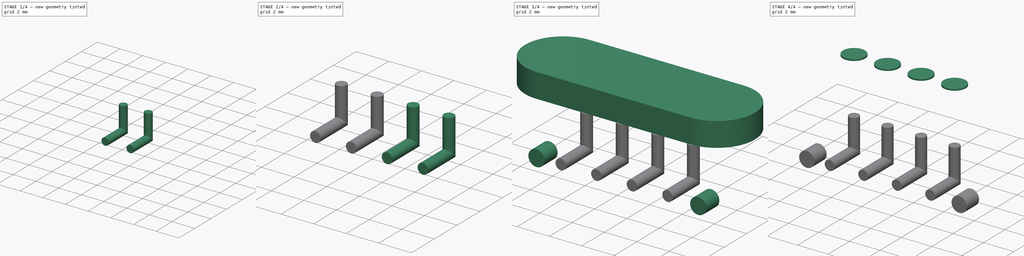
[diagram: build sequence overview — one tinted view per stage of 4, left to right]
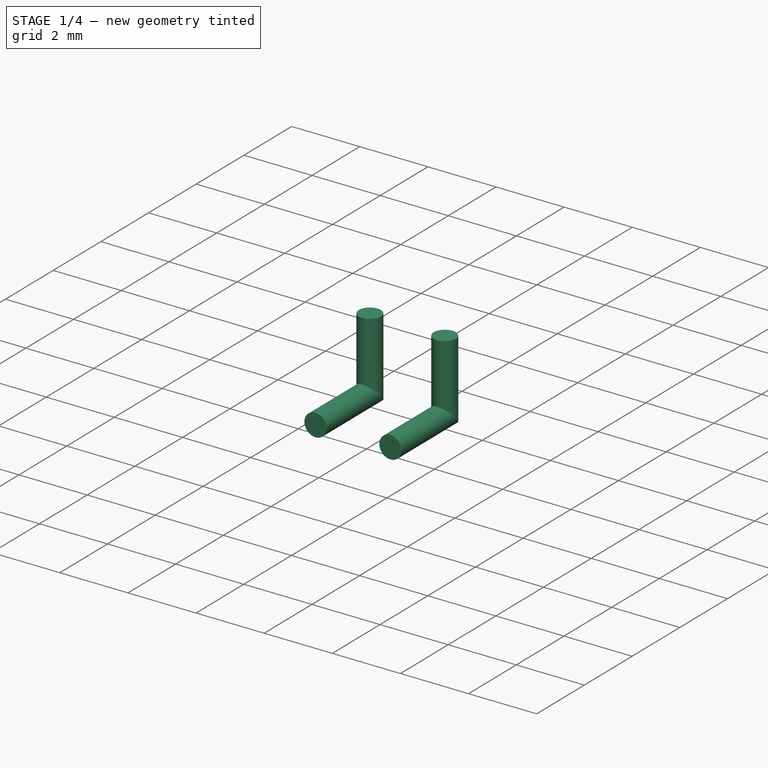
[diagram: stage 1 of 4 — iso view after this stage's code; geometry added in this stage tinted green]
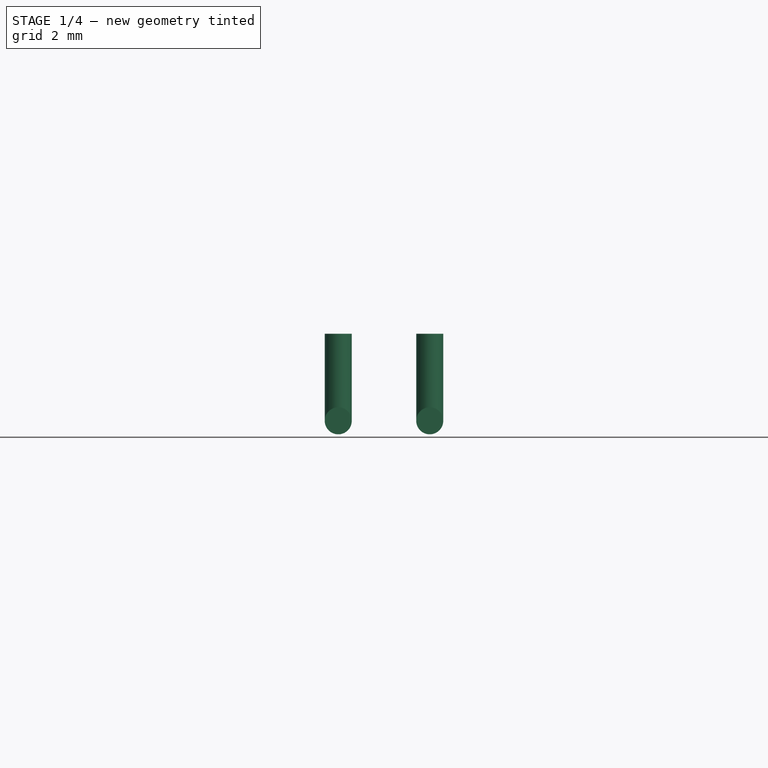
[diagram: stage 1 of 4 — front view after this stage's code; geometry added in this stage tinted green]
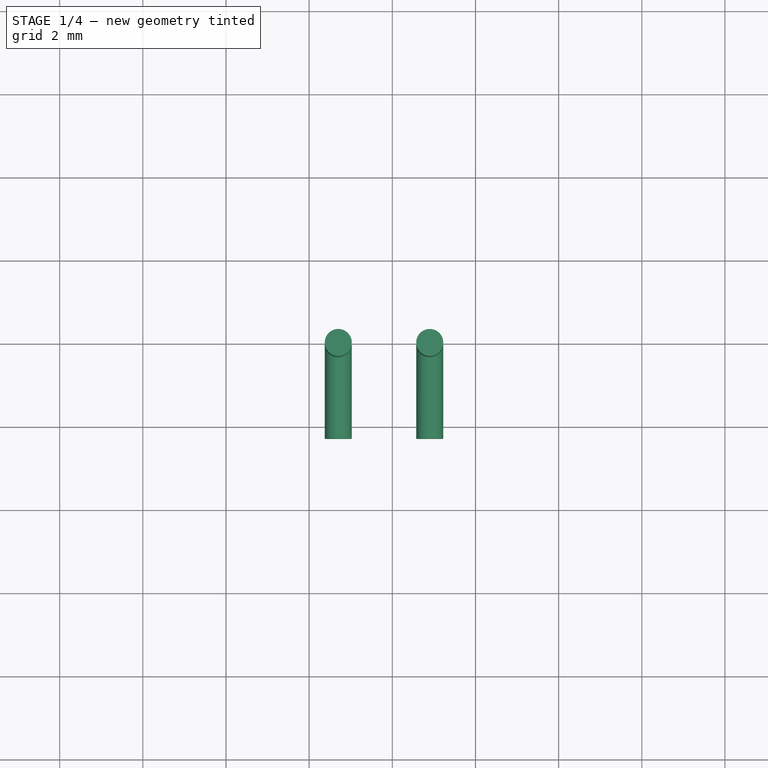
[diagram: stage 1 of 4 — top view after this stage's code; geometry added in this stage tinted green]
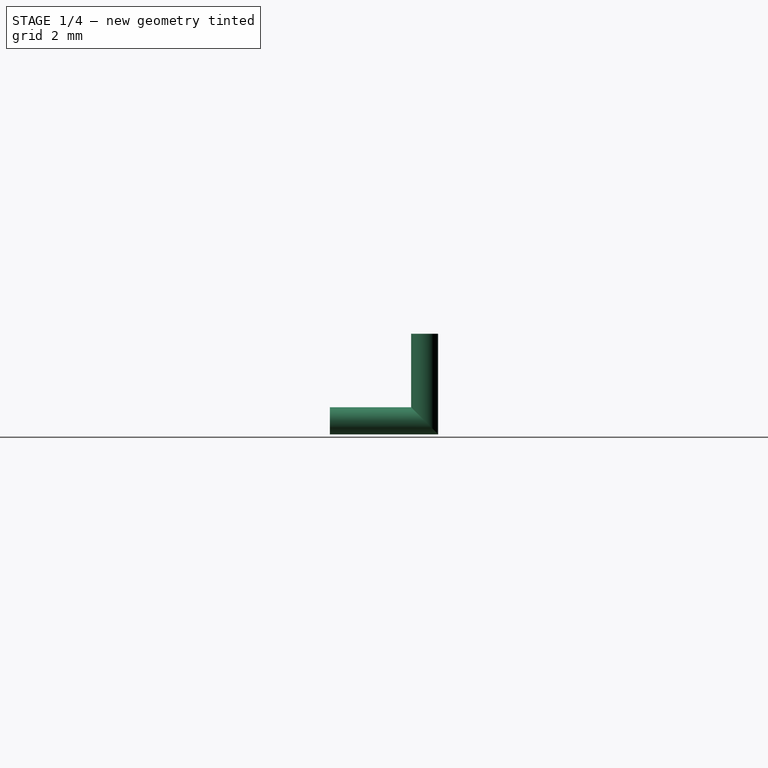
[diagram: stage 1 of 4 — right view after this stage's code; geometry added in this stage tinted green]
FCSTD DOCUMENT  (FreeCAD 0.19R16936 (Git))
Label: HTP-CA-M512
License: All rights reserved
LicenseURL: http://en.wikipedia.org/wiki/All_rights_reserved
objects: Sketcher::SketchObject×12, Part::Extrusion×6, Part::Sweep×4
note: 22 computed .brp shape members not serialized (recipe doc carries the construction recipe); baked Part::Feature solids carry a one-line shape summary decoded from their .brp

FEATURE [Part::Sweep] Sweep002  label="pin4_sweep"
  Frenet = false
  Sections = -> [Sketch012]
  Solid = true
  Spine = -> Sketch008 [Edge1,Edge2]
  Transition = 1
FEATURE [Part::Sweep] Sweep003  label="pin3_sweep"
  Frenet = false
  Sections = -> [Sketch011]
  Solid = true
  Spine = -> Sketch008 [Edge1,Edge2]
  Transition = 1
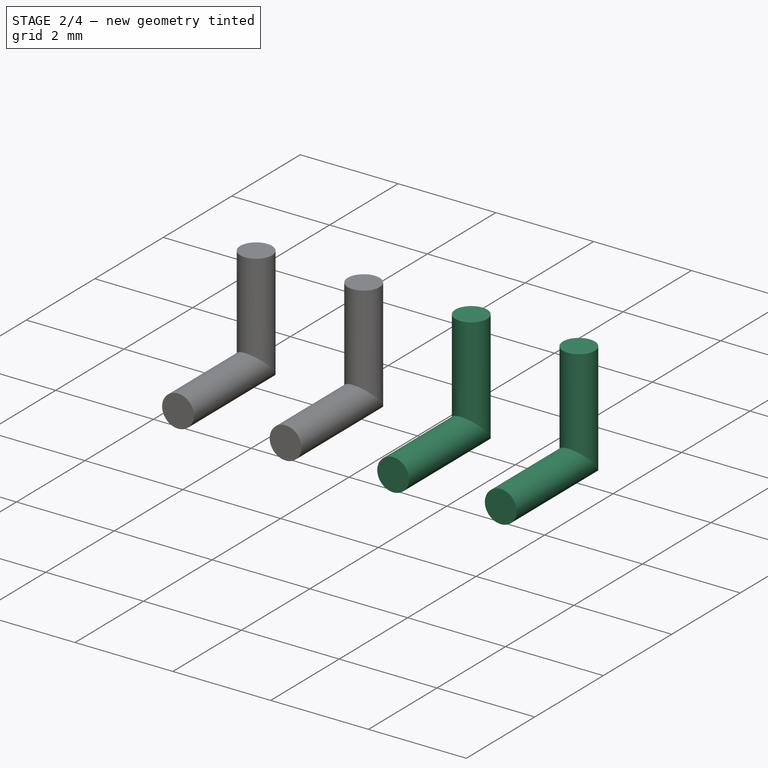
[diagram: stage 2 of 4 — iso view after this stage's code; geometry added in this stage tinted green]
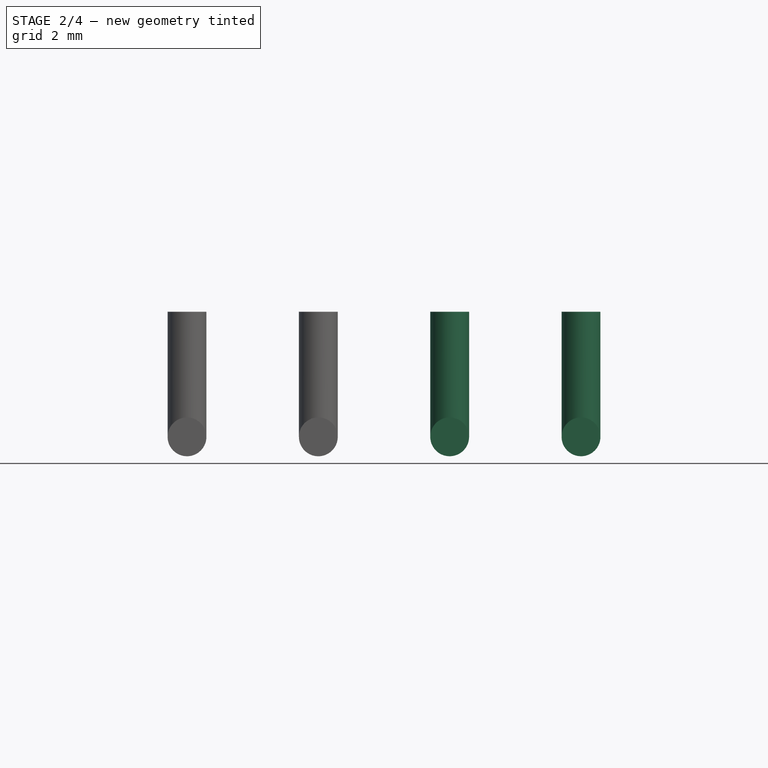
[diagram: stage 2 of 4 — front view after this stage's code; geometry added in this stage tinted green]
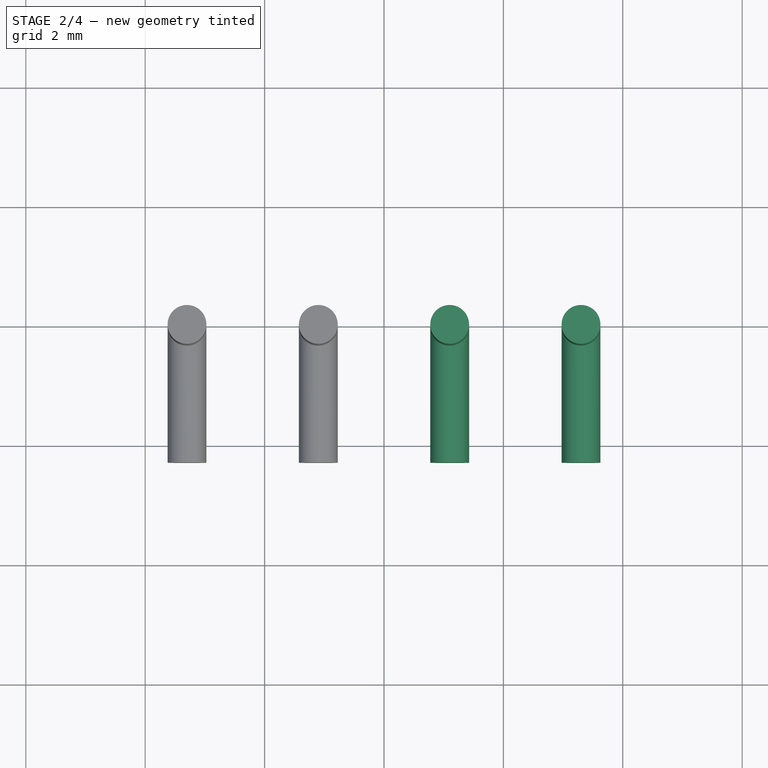
[diagram: stage 2 of 4 — top view after this stage's code; geometry added in this stage tinted green]
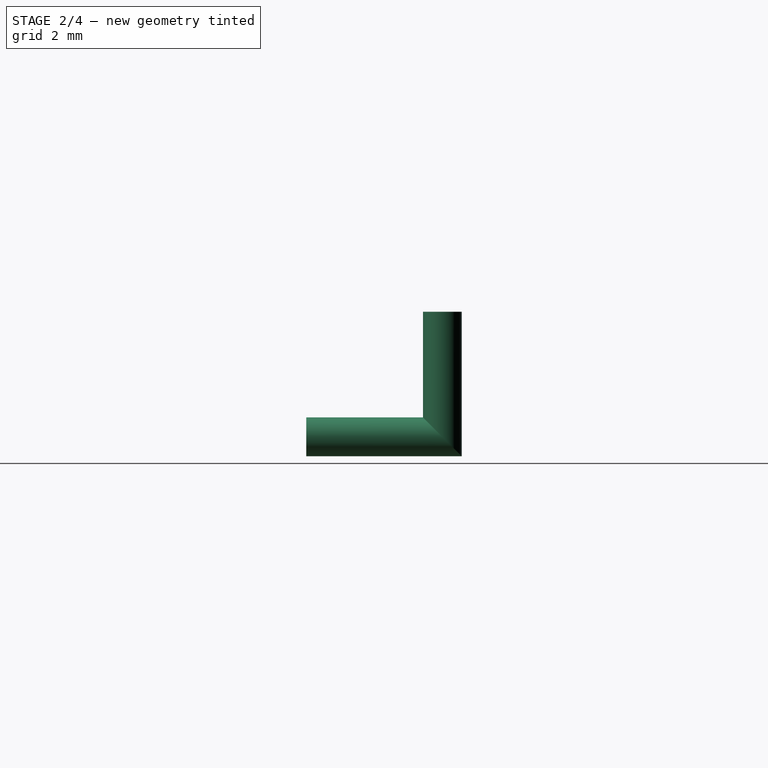
[diagram: stage 2 of 4 — right view after this stage's code; geometry added in this stage tinted green]
FEATURE [Sketcher::SketchObject] Sketch006  label="pin_sketch"
  MapMode = 5
  Placement = pos=(0,0,0) rot=(1,0,0;3.14159rad)
  Support = -> [Extrude]
  expr: Constraints[3] = 0.65 / 2
  sketch-geometry (7):
    g0: Circle CenterX=-3.3 CenterY=0 CenterZ=0 NormalX=0 NormalY=0 NormalZ=1 AngleXU=0 Radius=0.325
    g1: Circle CenterX=-1.1 CenterY=0 CenterZ=0 NormalX=0 NormalY=0 NormalZ=1 AngleXU=0 Radius=0.325
    g2: Circle CenterX=1.1 CenterY=0 CenterZ=0 NormalX=0 NormalY=0 NormalZ=1 AngleXU=0 Radius=0.325
    g3: Circle CenterX=3.3 CenterY=0 CenterZ=0 NormalX=0 NormalY=0 NormalZ=1 AngleXU=0 Radius=0.325
    g4: LineSegment [constr] StartX=-3.3 StartY=0 StartZ=0 EndX=-1.1 EndY=0 EndZ=0
    g5: LineSegment [constr] StartX=-1.1 StartY=0 StartZ=0 EndX=1.1 EndY=0 EndZ=0
    g6: LineSegment [constr] StartX=1.1 StartY=0 StartZ=0 EndX=3.3 EndY=0 EndZ=0
  constraints (17):
    c: Equal(g1,g0)
    c: Equal(g0,g2)
    c: Equal(g2,g3)
    c: Radius(g0) = 0.325
    c: Coincident(g4,g0)
    c: Coincident(g4,g1)
    c: Coincident(g5,g1)
    c: Coincident(g5,g2)
    c: Horizontal(g5)
    c: Coincident(g6,g2)
    c: Coincident(g6,g3)
    c: Horizontal(g4)
    c: Horizontal(g6)
    c: Equal(g4,g5)
    c: Equal(g5,g6)
    c: Symmetric(g1,g2,g-1)
    c: Distance(g5) = 2.2
FEATURE [Sketcher::SketchObject] Sketch009  label="pin1"
  ExternalGeometry = -> [Sketch006]
  MapMode = 5
  Placement = pos=(0,0,0) rot=(1,0,0;3.14159rad)
  Support = -> [Extrude]
  sketch-geometry (1):
    g0: Circle CenterX=3.3 CenterY=0 CenterZ=0 NormalX=0 NormalY=0 NormalZ=1 AngleXU=0 Radius=0.325
  constraints (2):
    c: Coincident(g0,g-3)
    c: Equal(g0,g-3)
FEATURE [Part::Sweep] Sweep  label="pin1_sweep"
  Frenet = false
  Sections = -> [Sketch009]
  Solid = true
  Spine = -> Sketch008 [Edge1,Edge2]
  Transition = 1
FEATURE [Sketcher::SketchObject] Sketch010  label="pin2"
  ExternalGeometry = -> [Sketch006]
  MapMode = 5
  Placement = pos=(0,0,0) rot=(1,0,0;3.14159rad)
  Support = -> [Extrude]
  sketch-geometry (1):
    g0: Circle CenterX=1.1 CenterY=0 CenterZ=0 NormalX=0 NormalY=0 NormalZ=1 AngleXU=0 Radius=0.325
  constraints (2):
    c: Coincident(g0,g-3)
    c: Equal(g0,g-3)
FEATURE [Sketcher::SketchObject] Sketch011  label="pin3"
  ExternalGeometry = -> [Sketch006]
  MapMode = 5
  Placement = pos=(0,0,0) rot=(1,0,0;3.14159rad)
  Support = -> [Extrude]
  sketch-geometry (1):
    g0: Circle CenterX=-1.1 CenterY=0 CenterZ=0 NormalX=0 NormalY=0 NormalZ=1 AngleXU=0 Radius=0.325
  constraints (2):
    c: Coincident(g0,g-3)
    c: Equal(g0,g-3)
FEATURE [Sketcher::SketchObject] Sketch012  label="pin4"
  ExternalGeometry = -> [Sketch006]
  MapMode = 5
  Placement = pos=(0,0,0) rot=(1,0,0;3.14159rad)
  Support = -> [Extrude]
  sketch-geometry (1):
    g0: Circle CenterX=-3.3 CenterY=0 CenterZ=0 NormalX=0 NormalY=0 NormalZ=1 AngleXU=0 Radius=0.325
  constraints (2):
    c: Coincident(g0,g-3)
    c: Equal(g0,g-3)
FEATURE [Part::Sweep] Sweep001  label="pin2_sweep"
  Frenet = false
  Sections = -> [Sketch010]
  Solid = true
  Spine = -> Sketch008 [Edge1,Edge2]
  Transition = 1
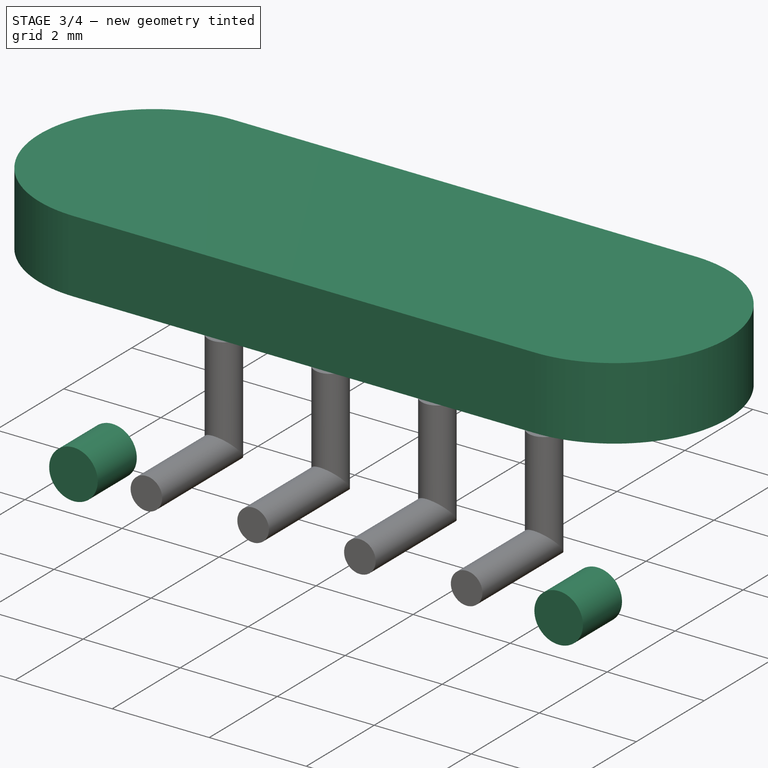
[diagram: stage 3 of 4 — iso view after this stage's code; geometry added in this stage tinted green]
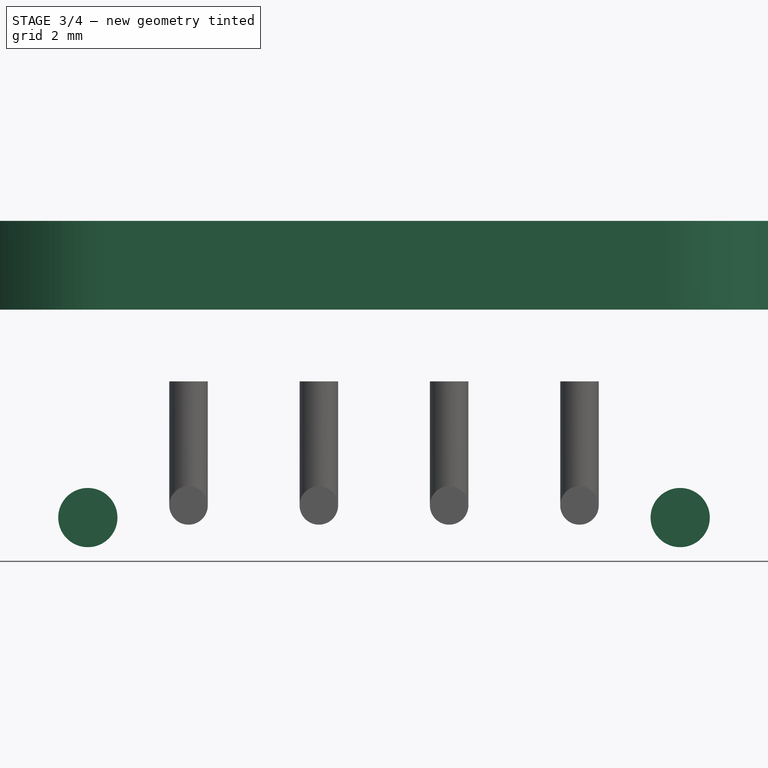
[diagram: stage 3 of 4 — front view after this stage's code; geometry added in this stage tinted green]
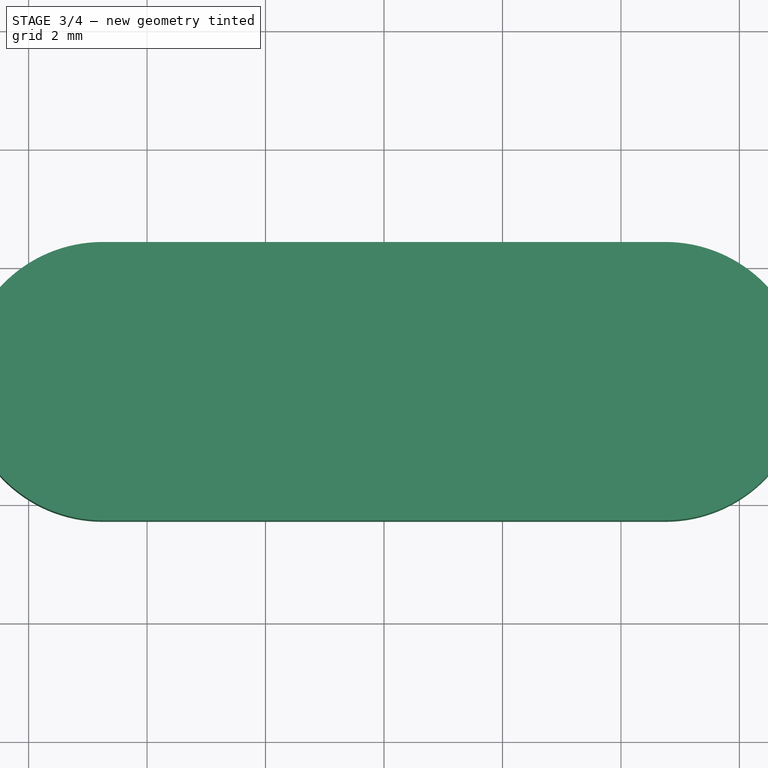
[diagram: stage 3 of 4 — top view after this stage's code; geometry added in this stage tinted green]
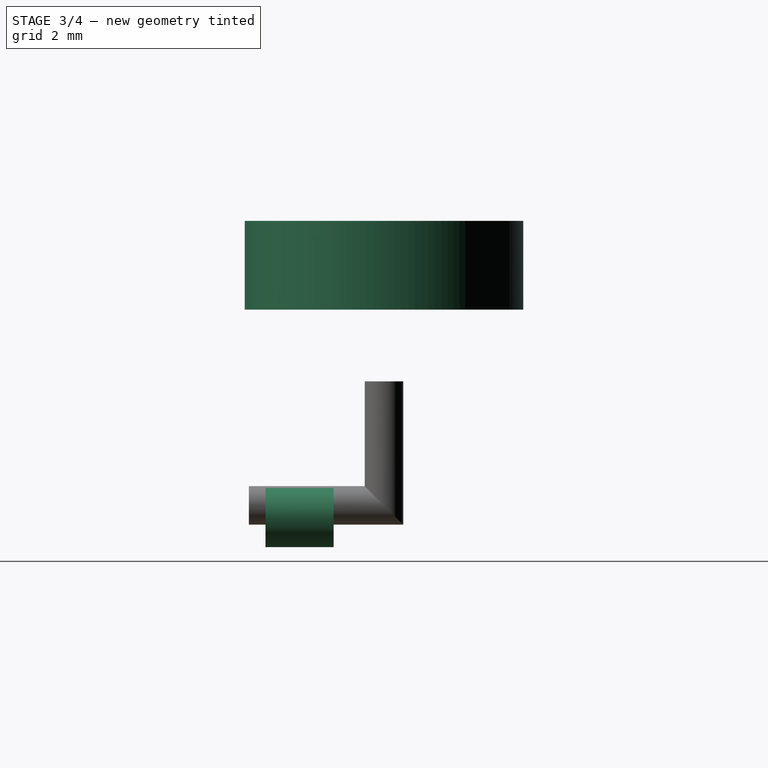
[diagram: stage 3 of 4 — right view after this stage's code; geometry added in this stage tinted green]
FEATURE [Sketcher::SketchObject] Sketch008  label="pin_sweep"
  Placement = pos=(0,0,0) rot=(0.57735,0.57735,0.57735;2.0944rad)
  expr: Constraints[2] = 2.42 - 0.65 / 2
  sketch-geometry (2):
    g0: LineSegment StartX=0 StartY=0 StartZ=0 EndX=0 EndY=-2.095 EndZ=0
    g1: LineSegment StartX=0 StartY=-2.095 StartZ=0 EndX=-2.28135 EndY=-2.095 EndZ=0
  constraints (5):
    c: Coincident(g-1,g0)
    c: PointOnObject(g0,g-2)
    c: DistanceY(g0,g0) = 2.095
    c: Coincident(g1,g0)
    c: Horizontal(g1)
FEATURE [Sketcher::SketchObject] Sketch  label="1"
  MapMode = 5
  Placement = pos=(0,0,1.21) rot=(0,0,1;0rad)
  Support = -> [Extrude]
  sketch-geometry (7):
    g0: ArcOfCircle CenterX=-4.75 CenterY=1e-16 CenterZ=0 NormalX=0 NormalY=0 NormalZ=1 AngleXU=0 Radius=2.35 StartAngle=1.5708 EndAngle=4.71239
    g1: ArcOfCircle CenterX=4.75 CenterY=0 CenterZ=0 NormalX=0 NormalY=0 NormalZ=1 AngleXU=0 Radius=2.35 StartAngle=4.71239 EndAngle=7.85398
    g2: LineSegment StartX=-4.75 StartY=-2.35 StartZ=0 EndX=4.75 EndY=-2.35 EndZ=0
    g3: LineSegment StartX=-4.75 StartY=2.35 StartZ=0 EndX=4.75 EndY=2.35 EndZ=0
    g4: LineSegment [constr] StartX=-7.1 StartY=2.5 StartZ=0 EndX=-7.1 EndY=-2.5 EndZ=0
    g5: LineSegment [constr] StartX=7.1 StartY=2.5 StartZ=0 EndX=7.1 EndY=-2.5 EndZ=0
    g6: LineSegment [constr] StartX=-7.1 StartY=-2.5 StartZ=0 EndX=7.1 EndY=-2.5 EndZ=0
  constraints (18):
    c: Tangent(g0,g3) = 1.5708
    c: Tangent(g0,g2) = -1.5708
    c: Tangent(g2,g1) = -1.5708
    c: Tangent(g3,g1) = 1.5708
    c: Horizontal(g2)
    c: Equal(g0,g1)
    c: Vertical(g4)
    c: Tangent(g4,g0)
    c: Vertical(g5)
    c: DistanceX(g4,g5) = 14.2
    c: Equal(g4,g5)
    c: Symmetric(g0,g1,g-1)
    c: Distance(g5) = 5
    c: Symmetric(g4,g5,g-1)
    c: Coincident(g6,g4)
    c: Coincident(g6,g5)
    c: Horizontal(g6)
    c: DistanceY(g1,g1) = 4.7
FEATURE [Sketcher::SketchObject] Sketch001  label="2"
  ExternalGeometry = -> [Sketch]
  sketch-geometry (10):
    g0: LineSegment StartX=7 StartY=-2.35 StartZ=0 EndX=-7 EndY=-2.35 EndZ=0
    g1: ArcOfCircle CenterX=-7 CenterY=-1.85 CenterZ=0 NormalX=0 NormalY=0 NormalZ=1 AngleXU=0 Radius=0.5 StartAngle=3.14159 EndAngle=4.71239
    g2: LineSegment StartX=-7.5 StartY=-1.85 StartZ=0 EndX=-7.5 EndY=0.85 EndZ=0
    g3: LineSegment StartX=-6 StartY=2.35 StartZ=0 EndX=6 EndY=2.35 EndZ=0
    g4: LineSegment StartX=7.5 StartY=0.85 StartZ=0 EndX=7.5 EndY=-1.85 EndZ=0
    g5: ArcOfCircle CenterX=7 CenterY=-1.85 CenterZ=0 NormalX=0 NormalY=0 NormalZ=1 AngleXU=0 Radius=0.5 StartAngle=4.71239 EndAngle=6.28319
    g6: LineSegment [constr] StartX=-7.5 StartY=0 StartZ=0 EndX=0 EndY=0 EndZ=0
    g7: LineSegment [constr] StartX=0 StartY=0 StartZ=0 EndX=7.5 EndY=0 EndZ=0
    g8: ArcOfCircle CenterX=-6 CenterY=0.85 CenterZ=0 NormalX=0 NormalY=0 NormalZ=1 AngleXU=0 Radius=1.5 StartAngle=1.5708 EndAngle=3.14159
    g9: ArcOfCircle CenterX=6 CenterY=0.85 CenterZ=0 NormalX=0 NormalY=0 NormalZ=1 AngleXU=0 Radius=1.5 StartAngle=1e-16 EndAngle=1.5708
  constraints (24):
    c: Vertical(g4)
    c: DistanceX(g2,g4) = 15
    c: Equal(g4,g2)
    c: Tangent(g5,g4) = 1.5708
    c: Tangent(g1,g0) = 1.5708
    c: Tangent(g1,g2) = 1.5708
    c: Equal(g1,g5)
    c: Tangent(g5,g0) = 1.5708
    c: PointOnObject(g6,g2)
    c: Coincident(g6,g-1)
    c: Horizontal(g6)
    c: Coincident(g7,g-1)
    c: PointOnObject(g7,g4)
    c: Horizontal(g7)
    c: Equal(g7,g6)
    c: Tangent(g0,g-5)
    c: Tangent(g8,g2) = 1.5708
    c: Tangent(g9,g4) = 1.5708
    c: Tangent(g9,g3) = 1.5708
    c: Radius(g1) = 0.5
    c: Tangent(g8,g3) = 1.5708
    c: Vertical(g2)
    c: Tangent(g3,g-3)
    c: DistanceX(g3,g3) = 12
FEATURE [Sketcher::SketchObject] Sketch002  label="copper"
  MapMode = 5
  Placement = pos=(0,0,3.56) rot=(0,0,1;0rad)
  Support = -> [Extrude002]
  expr: Constraints[15] = 1.45 / 2
  sketch-geometry (7):
    g0: Circle CenterX=-3.3 CenterY=0 CenterZ=0 NormalX=0 NormalY=0 NormalZ=1 AngleXU=0 Radius=0.725
    g1: Circle CenterX=-1.1 CenterY=0 CenterZ=0 NormalX=0 NormalY=0 NormalZ=1 AngleXU=0 Radius=0.725
    g2: Circle CenterX=1.1 CenterY=0 CenterZ=0 NormalX=0 NormalY=0 NormalZ=1 AngleXU=0 Radius=0.725
    g3: Circle CenterX=3.3 CenterY=0 CenterZ=0 NormalX=0 NormalY=0 NormalZ=1 AngleXU=0 Radius=0.725
    g4: LineSegment [constr] StartX=-3.3 StartY=0 StartZ=0 EndX=-1.1 EndY=0 EndZ=0
    g5: LineSegment [constr] StartX=-1.1 StartY=0 StartZ=0 EndX=1.1 EndY=0 EndZ=0
    g6: LineSegment [constr] StartX=1.1 StartY=0 StartZ=0 EndX=3.3 EndY=0 EndZ=0
  constraints (17):
    c: Coincident(g4,g0)
    c: Coincident(g4,g1)
    c: Coincident(g5,g1)
    c: Coincident(g5,g2)
    c: Coincident(g6,g2)
    c: Coincident(g6,g3)
    c: Symmetric(g1,g2,g-1)
    c: Horizontal(g6)
    c: Horizontal(g5)
    c: Horizontal(g4)
    c: Equal(g4,g5)
    c: Equal(g6,g5)
    c: Equal(g3,g2)
    c: Equal(g2,g1)
    c: Equal(g1,g0)
    c: Radius(g3) = 0.725
    c: Distance(g5) = 2.2
FEATURE [Sketcher::SketchObject] Sketch003  label="0"
  MapMode = 5
  Placement = pos=(0,0,2.71) rot=(0,0,1;0rad)
  Support = -> [Extrude001]
  sketch-geometry (4):
    g0: ArcOfCircle CenterX=-4 CenterY=0 CenterZ=0 NormalX=0 NormalY=0 NormalZ=1 AngleXU=0 Radius=1 StartAngle=1.5708 EndAngle=4.71239
    g1: ArcOfCircle CenterX=4 CenterY=0 CenterZ=0 NormalX=0 NormalY=0 NormalZ=1 AngleXU=0 Radius=1 StartAngle=4.71239 EndAngle=7.85398
    g2: LineSegment StartX=-4 StartY=-1 StartZ=0 EndX=4 EndY=-1 EndZ=0
    g3: LineSegment StartX=-4 StartY=1 StartZ=0 EndX=4 EndY=1 EndZ=0
  constraints (9):
    c: Tangent(g0,g3) = 1.5708
    c: Tangent(g0,g2) = -1.5708
    c: Tangent(g2,g1) = -1.5708
    c: Tangent(g3,g1) = 1.5708
    c: Horizontal(g2)
    c: Equal(g0,g1)
    c: DistanceY(g0,g0) = 2
    c: DistanceX(g0,g1) = 8
    c: Symmetric(g1,g0,g-1)
FEATURE [Sketcher::SketchObject] Sketch004  label="3"
  ExternalGeometry = -> [Sketch001]
  sketch-geometry (10):
    g0: LineSegment StartX=-4.5 StartY=2.35 StartZ=0 EndX=-4.5 EndY=-0.85 EndZ=0
    g1: LineSegment StartX=-4.5 StartY=-0.85 StartZ=0 EndX=-7.5 EndY=-0.85 EndZ=0
    g2: LineSegment StartX=4.5 StartY=2.35 StartZ=0 EndX=4.5 EndY=-0.85 EndZ=0
    g3: LineSegment StartX=4.5 StartY=-0.85 StartZ=0 EndX=7.5 EndY=-0.85 EndZ=0
    g4: LineSegment StartX=-7.5 StartY=-0.85 StartZ=0 EndX=-7.5 EndY=0.85 EndZ=0
    g5: LineSegment StartX=-6 StartY=2.35 StartZ=0 EndX=-4.5 EndY=2.35 EndZ=0
    g6: ArcOfCircle CenterX=-6 CenterY=0.85 CenterZ=0 NormalX=0 NormalY=0 NormalZ=1 AngleXU=0 Radius=1.5 StartAngle=1.5708 EndAngle=3.14159
    g7: LineSegment StartX=7.5 StartY=-0.85 StartZ=0 EndX=7.5 EndY=0.85 EndZ=0
    g8: ArcOfCircle CenterX=6 CenterY=0.85 CenterZ=0 NormalX=0 NormalY=0 NormalZ=1 AngleXU=0 Radius=1.5 StartAngle=-2.4e-14 EndAngle=1.5708
    g9: LineSegment StartX=4.5 StartY=2.35 StartZ=0 EndX=6 EndY=2.35 EndZ=0
  constraints (29):
    c: PointOnObject(g0,g-3)
    c: Vertical(g0)
    c: Coincident(g1,g0)
    c: PointOnObject(g1,g-5)
    c: Horizontal(g1)
    c: PointOnObject(g2,g-3)
    c: Vertical(g2)
    c: Coincident(g3,g2)
    c: PointOnObject(g3,g-9)
    c: Horizontal(g3)
    c: DistanceY(g-8,g2) = 1.5
    c: Equal(g3,g1)
    c: Equal(g2,g0)
    c: DistanceX(g0,g2) = 9
    c: Coincident(g4,g1)
    c: Coincident(g4,g-5)
    c: Coincident(g5,g-4)
    c: Coincident(g5,g0)
    c: Coincident(g6,g-4)
    c: Coincident(g6,g5)
    c: Coincident(g6,g4)
    c: Coincident(g7,g3)
    c: Coincident(g7,g-10)
    c: Coincident(g8,g-10)
    c: Coincident(g8,g-10)
    c: Coincident(g8,g7)
    c: Coincident(g9,g2)
    c: Coincident(g9,g8)
    c: Horizontal(g9)
FEATURE [Part::Extrusion] Extrude  label="2_ext"
  Base = -> Sketch001
  Dir = (0,0,1)
  DirMode = 2
  FaceMakerClass = Part::FaceMakerBullseye
  LengthFwd = 1.21
  LengthRev = 0
  Solid = true
  Symmetric = false
FEATURE [Part::Extrusion] Extrude001  label="1_ext"
  Base = -> Sketch
  Dir = (0,0,1)
  DirMode = 2
  FaceMakerClass = Part::FaceMakerBullseye
  LengthFwd = 1.5
  LengthRev = 0
  Solid = true
  Symmetric = false
FEATURE [Part::Extrusion] Extrude004  label="3_ext"
  Base = -> Sketch004
  Dir = (0,0,1)
  DirMode = 2
  FaceMakerClass = Part::FaceMakerBullseye
  LengthFwd = 0
  LengthRev = 3.1
  Solid = true
  Symmetric = false
FEATURE [Sketcher::SketchObject] Sketch005  label="boss"
  ExternalGeometry = -> [Extrude,Extrude004]
  MapMode = 5
  Placement = pos=(0,-0.85,0) rot=(1,0,0;1.5708rad)
  Support = -> [Extrude004]
  sketch-geometry (5):
    g0: Circle CenterX=-5 CenterY=-2.3 CenterZ=0 NormalX=0 NormalY=0 NormalZ=1 AngleXU=0 Radius=0.5
    g1: Circle CenterX=5 CenterY=-2.3 CenterZ=0 NormalX=0 NormalY=0 NormalZ=1 AngleXU=0 Radius=0.5
    g2: LineSegment [constr] StartX=-5 StartY=-2.3 StartZ=0 EndX=0 EndY=-2.3 EndZ=0
    g3: LineSegment [constr] StartX=0 StartY=-2.3 StartZ=0 EndX=5 EndY=-2.3 EndZ=0
    g4: LineSegment [constr] StartX=0 StartY=0 StartZ=0 EndX=0 EndY=-2.3 EndZ=0
  constraints (13):
    c: Equal(g1,g0)
    c: DistanceX(g0,g1) = 10
    c: Coincident(g2,g0)
    c: Horizontal(g2)
    c: Coincident(g3,g2)
    c: Coincident(g3,g1)
    c: Equal(g3,g2)
    c: Horizontal(g3)
    c: Coincident(g4,g-1)
    c: Coincident(g4,g2)
    c: Vertical(g4)
    c: Distance(g4) = 2.3
    c: Radius(g1) = 0.5
FEATURE [Part::Extrusion] Extrude005  label="boss_ext"
  Base = -> Sketch005
  Dir = (0,-1,2e-16)
  DirMode = 2
  FaceMakerClass = Part::FaceMakerBullseye
  LengthFwd = 1.15
  LengthRev = 0
  Solid = true
  Symmetric = false
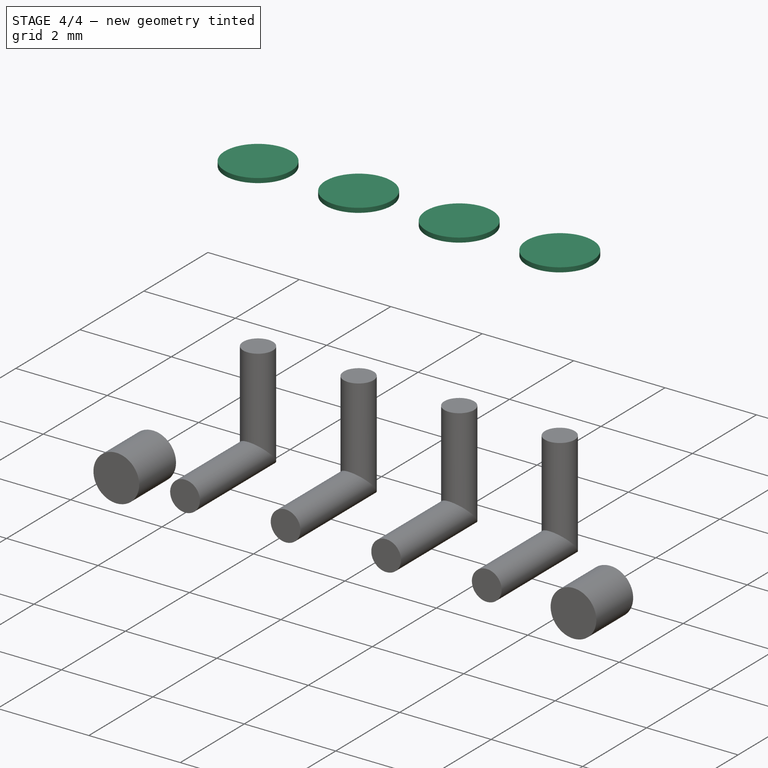
[diagram: stage 4 of 4 — iso view after this stage's code; geometry added in this stage tinted green]
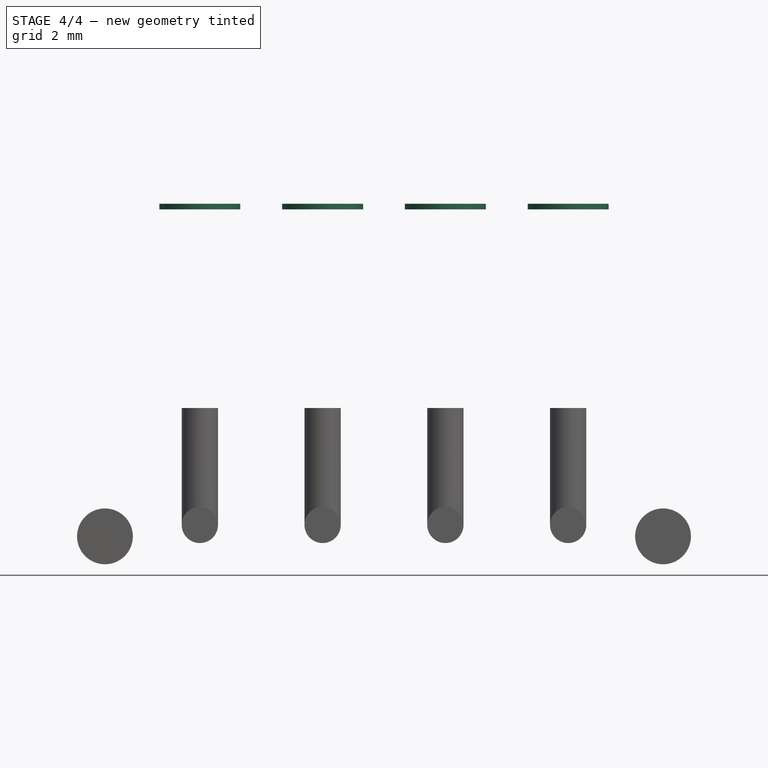
[diagram: stage 4 of 4 — front view after this stage's code; geometry added in this stage tinted green]
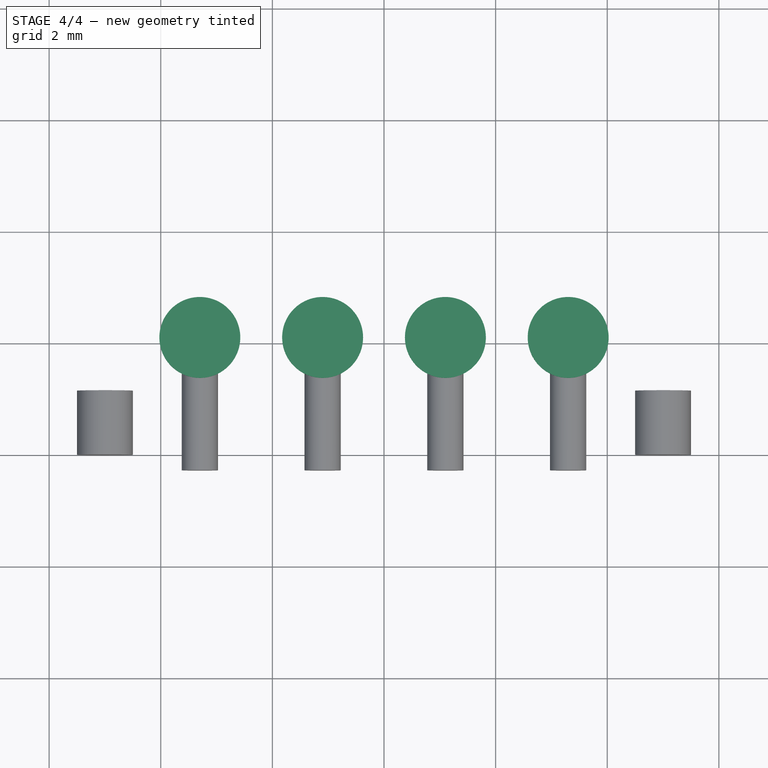
[diagram: stage 4 of 4 — top view after this stage's code; geometry added in this stage tinted green]
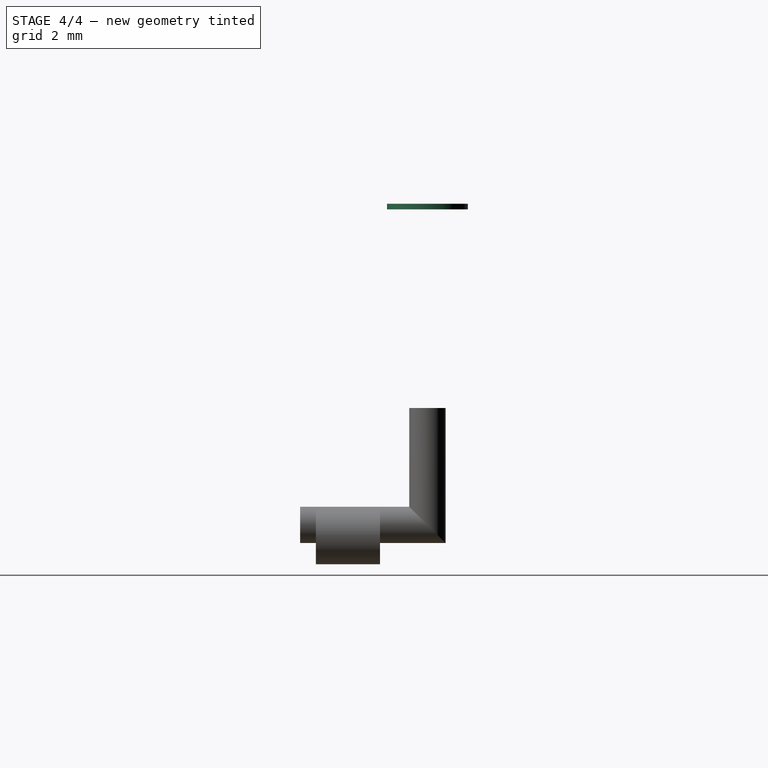
[diagram: stage 4 of 4 — right view after this stage's code; geometry added in this stage tinted green]
FEATURE [Part::Extrusion] Extrude002  label="0_ext"
  Base = -> Sketch003
  Dir = (0,0,1)
  DirMode = 2
  FaceMakerClass = Part::FaceMakerBullseye
  LengthFwd = 0.85
  LengthRev = 0
  Solid = true
  Symmetric = false
FEATURE [Part::Extrusion] Extrude003  label="copper_ext"
  Base = -> Sketch002
  Dir = (0,0,1)
  DirMode = 2
  FaceMakerClass = Part::FaceMakerBullseye
  LengthFwd = 0.1
  LengthRev = 0
  Solid = true
  Symmetric = false
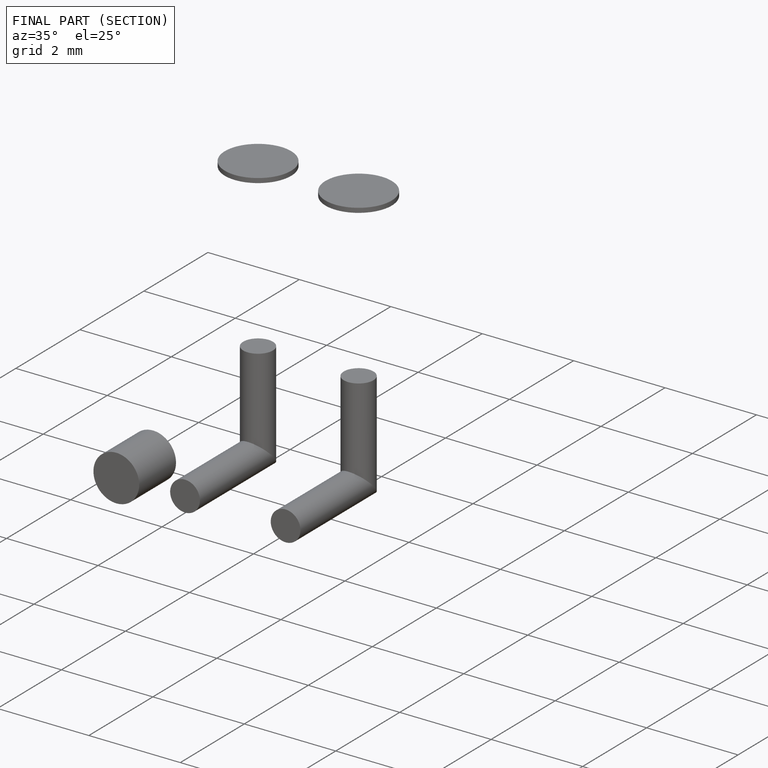
[diagram: finished part — half-section view (interior)]
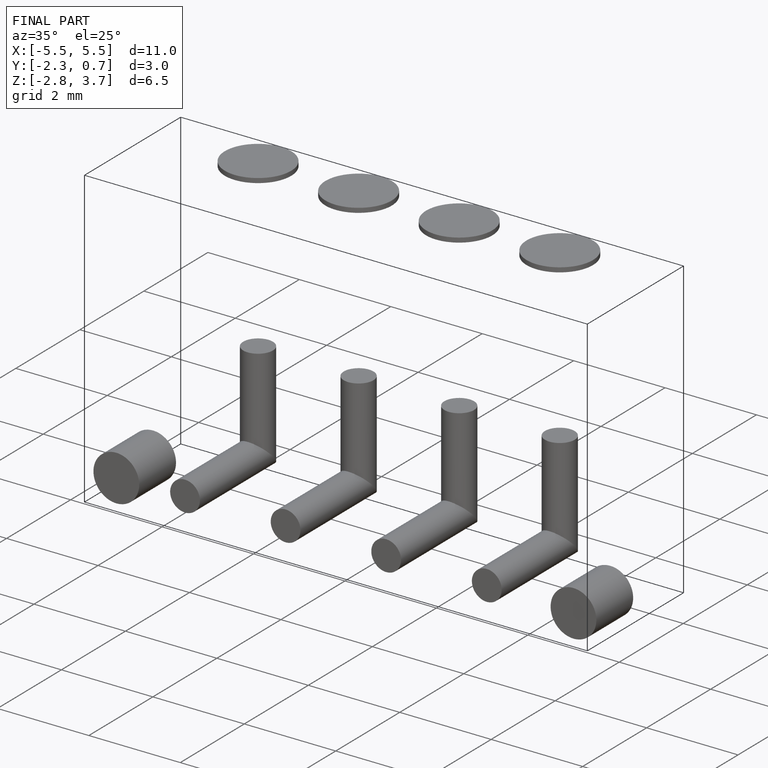
[diagram: finished part — iso view with bounding-box wireframe]
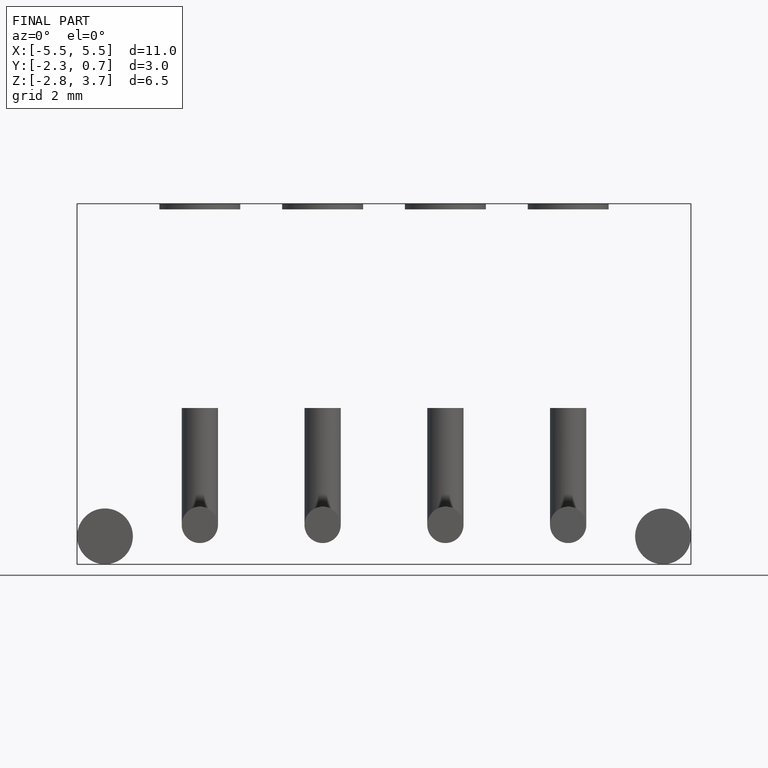
[diagram: finished part — front view with bounding-box wireframe]
